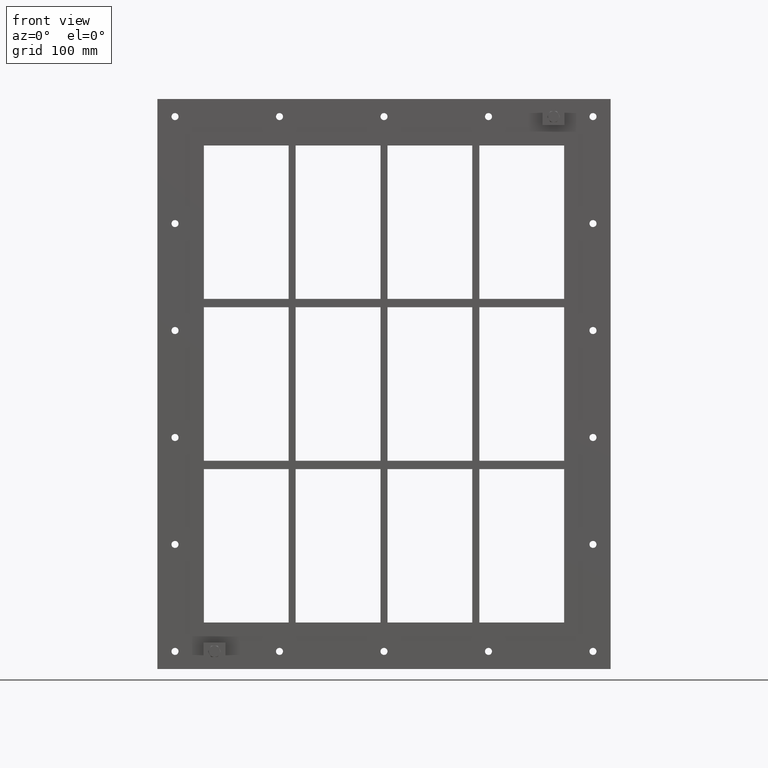
[diagram: clean part render]
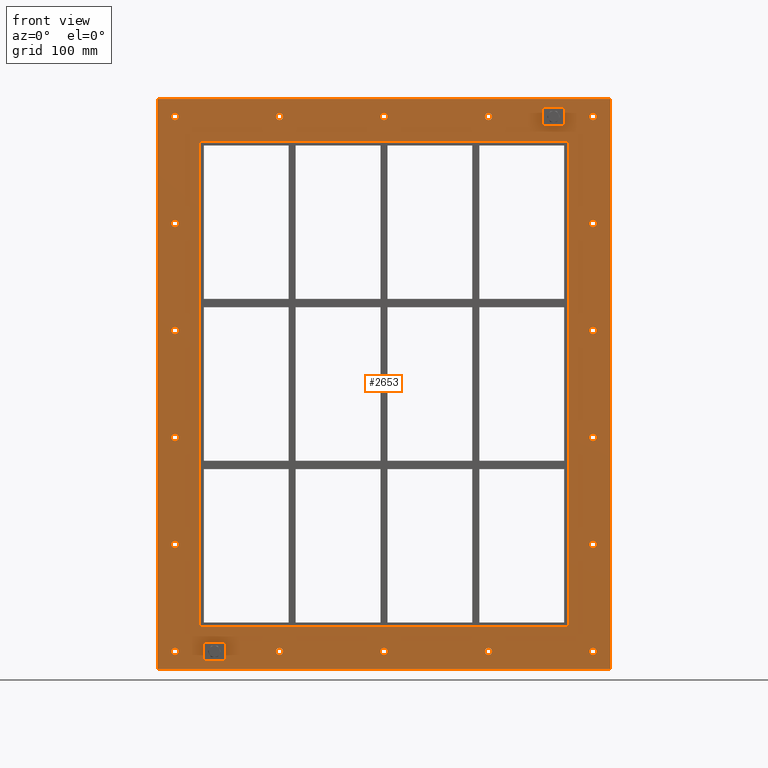
[diagram: same view with one face highlighted and labeled with its STEP entity id]
A machine part, front view. The second image highlights one B-rep face of the part: STEP entity #2653.
In plain terms, the highlighted planar face has unit normal (0, 1, 0).
Its self-contained STEP definition (entity closure, byte-faithful):
#84=CARTESIAN_POINT('',(-292.00000000000023,0.0,-380.0));
#85=VERTEX_POINT('',#84);
#86=CARTESIAN_POINT('',(-297.00000000000023,0.0,-380.0));
#87=DIRECTION('',(0.0,1.0,0.0));
#88=DIRECTION('',(1.0,0.0,0.0));
#89=AXIS2_PLACEMENT_3D('',#86,#87,#88);
#90=CIRCLE('',#89,5.0);
#91=EDGE_CURVE('',#85,#85,#90,.T.);
#112=CARTESIAN_POINT('',(301.99999999999983,0.0,-228.00000000000006));
#113=VERTEX_POINT('',#112);
#114=CARTESIAN_POINT('',(296.99999999999983,0.0,-228.00000000000006));
#115=DIRECTION('',(0.0,1.0,0.0));
#116=DIRECTION('',(1.0,0.0,0.0));
#117=AXIS2_PLACEMENT_3D('',#114,#115,#116);
#118=CIRCLE('',#117,5.0);
#119=EDGE_CURVE('',#113,#113,#118,.T.);
#140=CARTESIAN_POINT('',(-292.00000000000023,0.0,-228.00000000000006));
#141=VERTEX_POINT('',#140);
#142=CARTESIAN_POINT('',(-297.00000000000023,0.0,-228.00000000000006));
#143=DIRECTION('',(0.0,1.0,0.0));
#144=DIRECTION('',(1.0,0.0,0.0));
#145=AXIS2_PLACEMENT_3D('',#142,#143,#144);
#146=CIRCLE('',#145,5.0);
#147=EDGE_CURVE('',#141,#141,#146,.T.);
#168=CARTESIAN_POINT('',(301.99999999999983,0.0,-76.0));
#169=VERTEX_POINT('',#168);
#170=CARTESIAN_POINT('',(296.99999999999983,0.0,-76.0));
#171=DIRECTION('',(0.0,1.0,0.0));
#172=DIRECTION('',(1.0,0.0,0.0));
#173=AXIS2_PLACEMENT_3D('',#170,#171,#172);
#174=CIRCLE('',#173,5.0);
#175=EDGE_CURVE('',#169,#169,#174,.T.);
#196=CARTESIAN_POINT('',(-292.00000000000023,0.0,-76.0));
#197=VERTEX_POINT('',#196);
#198=CARTESIAN_POINT('',(-297.00000000000023,0.0,-76.0));
#199=DIRECTION('',(0.0,1.0,0.0));
#200=DIRECTION('',(1.0,0.0,0.0));
#201=AXIS2_PLACEMENT_3D('',#198,#199,#200);
#202=CIRCLE('',#201,5.0);
#203=EDGE_CURVE('',#197,#197,#202,.T.);
#224=CARTESIAN_POINT('',(301.99999999999983,0.0,75.999999999999957));
#225=VERTEX_POINT('',#224);
#226=CARTESIAN_POINT('',(296.99999999999983,0.0,75.999999999999957));
#227=DIRECTION('',(0.0,1.0,0.0));
#228=DIRECTION('',(1.0,0.0,0.0));
#229=AXIS2_PLACEMENT_3D('',#226,#227,#228);
#230=CIRCLE('',#229,5.0);
#231=EDGE_CURVE('',#225,#225,#230,.T.);
#252=CARTESIAN_POINT('',(-292.00000000000023,0.0,75.999999999999957));
#253=VERTEX_POINT('',#252);
#254=CARTESIAN_POINT('',(-297.00000000000023,0.0,75.999999999999957));
#255=DIRECTION('',(0.0,1.0,0.0));
#256=DIRECTION('',(1.0,0.0,0.0));
#257=AXIS2_PLACEMENT_3D('',#254,#255,#256);
#258=CIRCLE('',#257,5.0);
#259=EDGE_CURVE('',#253,#253,#258,.T.);
#280=CARTESIAN_POINT('',(301.99999999999983,0.0,227.99999999999997));
#281=VERTEX_POINT('',#280);
#282=CARTESIAN_POINT('',(296.99999999999983,0.0,227.99999999999997));
#283=DIRECTION('',(0.0,1.0,0.0));
#284=DIRECTION('',(1.0,0.0,0.0));
#285=AXIS2_PLACEMENT_3D('',#282,#283,#284);
#286=CIRCLE('',#285,5.0);
#287=EDGE_CURVE('',#281,#281,#286,.T.);
#308=CARTESIAN_POINT('',(-292.00000000000023,0.0,227.99999999999997));
#309=VERTEX_POINT('',#308);
#310=CARTESIAN_POINT('',(-297.00000000000023,0.0,227.99999999999997));
#311=DIRECTION('',(0.0,1.0,0.0));
#312=DIRECTION('',(1.0,0.0,0.0));
#313=AXIS2_PLACEMENT_3D('',#310,#311,#312);
#314=CIRCLE('',#313,5.0);
#315=EDGE_CURVE('',#309,#309,#314,.T.);
#336=CARTESIAN_POINT('',(-143.5000000000002,0.0,380.0));
#337=VERTEX_POINT('',#336);
#338=CARTESIAN_POINT('',(-148.5000000000002,0.0,380.0));
#339=DIRECTION('',(0.0,1.0,0.0));
#340=DIRECTION('',(1.0,0.0,0.0));
#341=AXIS2_PLACEMENT_3D('',#338,#339,#340);
#342=CIRCLE('',#341,5.0);
#343=EDGE_CURVE('',#337,#337,#342,.T.);
#364=CARTESIAN_POINT('',(-143.50000000000017,0.0,-380.0));
#365=VERTEX_POINT('',#364);
#366=CARTESIAN_POINT('',(-148.50000000000017,0.0,-380.0));
#367=DIRECTION('',(0.0,1.0,0.0));
#368=DIRECTION('',(1.0,0.0,0.0));
#369=AXIS2_PLACEMENT_3D('',#366,#367,#368);
#370=CIRCLE('',#369,5.0);
#371=EDGE_CURVE('',#365,#365,#370,.T.);
#392=CARTESIAN_POINT('',(4.999999999999822,0.0,380.0));
#393=VERTEX_POINT('',#392);
#394=CARTESIAN_POINT('',(-1.776357E-013,0.0,380.0));
#395=DIRECTION('',(0.0,1.0,0.0));
#396=DIRECTION('',(1.0,0.0,0.0));
#397=AXIS2_PLACEMENT_3D('',#394,#395,#396);
#398=CIRCLE('',#397,5.0);
#399=EDGE_CURVE('',#393,#393,#398,.T.);
#420=CARTESIAN_POINT('',(4.999999999999858,0.0,-380.0));
#421=VERTEX_POINT('',#420);
#422=CARTESIAN_POINT('',(-1.421085E-013,0.0,-380.0));
#423=DIRECTION('',(0.0,1.0,0.0));
#424=DIRECTION('',(1.0,0.0,0.0));
#425=AXIS2_PLACEMENT_3D('',#422,#423,#424);
#426=CIRCLE('',#425,5.0);
#427=EDGE_CURVE('',#421,#421,#426,.T.);
#448=CARTESIAN_POINT('',(153.49999999999983,0.0,380.0));
#449=VERTEX_POINT('',#448);
#450=CARTESIAN_POINT('',(148.49999999999983,0.0,380.0));
#451=DIRECTION('',(0.0,1.0,0.0));
#452=DIRECTION('',(1.0,0.0,0.0));
#453=AXIS2_PLACEMENT_3D('',#450,#451,#452);
#454=CIRCLE('',#453,5.0);
#455=EDGE_CURVE('',#449,#449,#454,.T.);
#476=CARTESIAN_POINT('',(153.49999999999989,0.0,-380.0));
#477=VERTEX_POINT('',#476);
#478=CARTESIAN_POINT('',(148.49999999999989,0.0,-380.0));
#479=DIRECTION('',(0.0,1.0,0.0));
#480=DIRECTION('',(1.0,0.0,0.0));
#481=AXIS2_PLACEMENT_3D('',#478,#479,#480);
#482=CIRCLE('',#481,5.0);
#483=EDGE_CURVE('',#477,#477,#482,.T.);
#504=CARTESIAN_POINT('',(301.99999999999989,0.0,-380.0));
#505=VERTEX_POINT('',#504);
#506=CARTESIAN_POINT('',(296.99999999999989,0.0,-380.0));
#507=DIRECTION('',(0.0,1.0,0.0));
#508=DIRECTION('',(1.0,0.0,0.0));
#509=AXIS2_PLACEMENT_3D('',#506,#507,#508);
#510=CIRCLE('',#509,5.0);
#511=EDGE_CURVE('',#505,#505,#510,.T.);
#532=CARTESIAN_POINT('',(-292.00000000000023,0.0,380.0));
#533=VERTEX_POINT('',#532);
#534=CARTESIAN_POINT('',(-297.00000000000023,0.0,380.0));
#535=DIRECTION('',(0.0,1.0,0.0));
#536=DIRECTION('',(1.0,0.0,0.0));
#537=AXIS2_PLACEMENT_3D('',#534,#535,#536);
#538=CIRCLE('',#537,5.0);
#539=EDGE_CURVE('',#533,#533,#538,.T.);
#560=CARTESIAN_POINT('',(301.99999999999983,0.0,380.0));
#561=VERTEX_POINT('',#560);
#562=CARTESIAN_POINT('',(296.99999999999983,0.0,380.0));
#563=DIRECTION('',(0.0,1.0,0.0));
#564=DIRECTION('',(1.0,0.0,0.0));
#565=AXIS2_PLACEMENT_3D('',#562,#563,#564);
#566=CIRCLE('',#565,5.0);
#567=EDGE_CURVE('',#561,#561,#566,.T.);
#2490=CARTESIAN_POINT('',(-2.345671E-014,0.0,3.518506E-014));
#2491=DIRECTION('',(0.0,1.0,0.0));
#2492=DIRECTION('',(0.0,0.0,1.0));
#2493=AXIS2_PLACEMENT_3D('',#2490,#2491,#2492);
#2494=PLANE('',#2493);
#2495=CARTESIAN_POINT('',(-322.0,0.0,405.00000000000006));
#2496=VERTEX_POINT('',#2495);
#2497=CARTESIAN_POINT('',(321.99999999999994,0.0,405.00000000000006));
#2498=VERTEX_POINT('',#2497);
#2499=CARTESIAN_POINT('',(-322.0,0.0,405.00000000000006));
#2500=DIRECTION('',(1.0,0.0,0.0));
#2501=VECTOR('',#2500,644.0);
#2502=LINE('',#2499,#2501);
#2503=EDGE_CURVE('',#2496,#2498,#2502,.T.);
#2504=ORIENTED_EDGE('',*,*,#2503,.F.);
#2505=CARTESIAN_POINT('',(-322.0,0.0,-405.0));
#2506=VERTEX_POINT('',#2505);
#2507=CARTESIAN_POINT('',(-322.0,0.0,-405.0));
#2508=DIRECTION('',(0.0,0.0,1.0));
#2509=VECTOR('',#2508,810.0);
#2510=LINE('',#2507,#2509);
#2511=EDGE_CURVE('',#2506,#2496,#2510,.T.);
#2512=ORIENTED_EDGE('',*,*,#2511,.F.);
#2513=CARTESIAN_POINT('',(321.99999999999994,0.0,-405.0));
#2514=VERTEX_POINT('',#2513);
#2515=CARTESIAN_POINT('',(321.99999999999994,0.0,-405.0));
#2516=DIRECTION('',(-1.0,0.0,0.0));
#2517=VECTOR('',#2516,644.0);
#2518=LINE('',#2515,#2517);
#2519=EDGE_CURVE('',#2514,#2506,#2518,.T.);
#2520=ORIENTED_EDGE('',*,*,#2519,.F.);
#2521=CARTESIAN_POINT('',(321.99999999999994,0.0,405.00000000000006));
#2522=DIRECTION('',(0.0,0.0,-1.0));
#2523=VECTOR('',#2522,810.0);
#2524=LINE('',#2521,#2523);
#2525=EDGE_CURVE('',#2498,#2514,#2524,.T.);
#2526=ORIENTED_EDGE('',*,*,#2525,.F.);
#2527=EDGE_LOOP('',(#2504,#2512,#2520,#2526));
#2528=FACE_OUTER_BOUND('',#2527,.T.);
#2529=ORIENTED_EDGE('',*,*,#91,.T.);
#2530=EDGE_LOOP('',(#2529));
#2531=FACE_BOUND('',#2530,.T.);
#2532=ORIENTED_EDGE('',*,*,#119,.T.);
#2533=EDGE_LOOP('',(#2532));
#2534=FACE_BOUND('',#2533,.T.);
#2535=ORIENTED_EDGE('',*,*,#147,.T.);
#2536=EDGE_LOOP('',(#2535));
#2537=FACE_BOUND('',#2536,.T.);
#2538=ORIENTED_EDGE('',*,*,#175,.T.);
#2539=EDGE_LOOP('',(#2538));
#2540=FACE_BOUND('',#2539,.T.);
#2541=ORIENTED_EDGE('',*,*,#203,.T.);
#2542=EDGE_LOOP('',(#2541));
#2543=FACE_BOUND('',#2542,.T.);
#2544=ORIENTED_EDGE('',*,*,#231,.T.);
#2545=EDGE_LOOP('',(#2544));
#2546=FACE_BOUND('',#2545,.T.);
#2547=ORIENTED_EDGE('',*,*,#259,.T.);
#2548=EDGE_LOOP('',(#2547));
#2549=FACE_BOUND('',#2548,.T.);
#2550=ORIENTED_EDGE('',*,*,#287,.T.);
#2551=EDGE_LOOP('',(#2550));
#2552=FACE_BOUND('',#2551,.T.);
#2553=ORIENTED_EDGE('',*,*,#315,.T.);
#2554=EDGE_LOOP('',(#2553));
#2555=FACE_BOUND('',#2554,.T.);
#2556=ORIENTED_EDGE('',*,*,#343,.T.);
#2557=EDGE_LOOP('',(#2556));
#2558=FACE_BOUND('',#2557,.T.);
#2559=ORIENTED_EDGE('',*,*,#371,.T.);
#2560=EDGE_LOOP('',(#2559));
#2561=FACE_BOUND('',#2560,.T.);
#2562=ORIENTED_EDGE('',*,*,#399,.T.);
#2563=EDGE_LOOP('',(#2562));
#2564=FACE_BOUND('',#2563,.T.);
#2565=ORIENTED_EDGE('',*,*,#427,.T.);
#2566=EDGE_LOOP('',(#2565));
#2567=FACE_BOUND('',#2566,.T.);
#2568=ORIENTED_EDGE('',*,*,#455,.T.);
#2569=EDGE_LOOP('',(#2568));
#2570=FACE_BOUND('',#2569,.T.);
#2571=ORIENTED_EDGE('',*,*,#483,.T.);
#2572=EDGE_LOOP('',(#2571));
#2573=FACE_BOUND('',#2572,.T.);
#2574=ORIENTED_EDGE('',*,*,#511,.T.);
#2575=EDGE_LOOP('',(#2574));
#2576=FACE_BOUND('',#2575,.T.);
#2577=ORIENTED_EDGE('',*,*,#539,.T.);
#2578=EDGE_LOOP('',(#2577));
#2579=FACE_BOUND('',#2578,.T.);
#2580=ORIENTED_EDGE('',*,*,#567,.T.);
#2581=EDGE_LOOP('',(#2580));
#2582=FACE_BOUND('',#2581,.T.);
#2583=CARTESIAN_POINT('',(-260.0,0.0,345.00000000000006));
#2584=VERTEX_POINT('',#2583);
#2585=CARTESIAN_POINT('',(-262.0,0.0,343.00000000000006));
#2586=VERTEX_POINT('',#2585);
#2587=CARTESIAN_POINT('',(-260.0,0.0,343.00000000000006));
#2588=DIRECTION('',(0.0,-1.0,0.0));
#2589=DIRECTION('',(-0.707106781186548,0.0,0.707106781186548));
#2590=AXIS2_PLACEMENT_3D('',#2587,#2588,#2589);
#2591=CIRCLE('',#2590,2.0);
#2592=EDGE_CURVE('',#2584,#2586,#2591,.T.);
#2593=ORIENTED_EDGE('',*,*,#2592,.F.);
#2594=CARTESIAN_POINT('',(260.0,0.0,345.00000000000006));
#2595=VERTEX_POINT('',#2594);
#2596=CARTESIAN_POINT('',(260.0,0.0,345.00000000000006));
#2597=DIRECTION('',(-1.0,0.0,0.0));
#2598=VECTOR('',#2597,520.0);
#2599=LINE('',#2596,#2598);
#2600=EDGE_CURVE('',#2595,#2584,#2599,.T.);
#2601=ORIENTED_EDGE('',*,*,#2600,.F.);
#2602=CARTESIAN_POINT('',(262.0,0.0,343.00000000000006));
#2603=VERTEX_POINT('',#2602);
#2604=CARTESIAN_POINT('',(260.0,0.0,343.00000000000006));
#2605=DIRECTION('',(0.0,-1.0,0.0));
#2606=DIRECTION('',(0.707106781186548,0.0,0.707106781186548));
#2607=AXIS2_PLACEMENT_3D('',#2604,#2605,#2606);
#2608=CIRCLE('',#2607,2.0);
#2609=EDGE_CURVE('',#2603,#2595,#2608,.T.);
#2610=ORIENTED_EDGE('',*,*,#2609,.F.);
#2611=CARTESIAN_POINT('',(262.0,0.0,-343.00000000000006));
#2612=VERTEX_POINT('',#2611);
#2613=CARTESIAN_POINT('',(262.0,0.0,-343.00000000000011));
#2614=DIRECTION('',(0.0,0.0,1.0));
#2615=VECTOR('',#2614,686.00000000000011);
#2616=LINE('',#2613,#2615);
#2617=EDGE_CURVE('',#2612,#2603,#2616,.T.);
#2618=ORIENTED_EDGE('',*,*,#2617,.F.);
#2619=CARTESIAN_POINT('',(260.0,0.0,-345.00000000000006));
#2620=VERTEX_POINT('',#2619);
#2621=CARTESIAN_POINT('',(260.0,0.0,-343.00000000000006));
#2622=DIRECTION('',(0.0,-1.0,0.0));
#2623=DIRECTION('',(0.707106781186548,0.0,-0.707106781186548));
#2624=AXIS2_PLACEMENT_3D('',#2621,#2622,#2623);
#2625=CIRCLE('',#2624,2.0);
#2626=EDGE_CURVE('',#2620,#2612,#2625,.T.);
#2627=ORIENTED_EDGE('',*,*,#2626,.F.);
#2628=CARTESIAN_POINT('',(-260.0,0.0,-345.00000000000006));
#2629=VERTEX_POINT('',#2628);
#2630=CARTESIAN_POINT('',(-260.0,0.0,-345.00000000000006));
#2631=DIRECTION('',(1.0,0.0,0.0));
#2632=VECTOR('',#2631,520.0);
#2633=LINE('',#2630,#2632);
#2634=EDGE_CURVE('',#2629,#2620,#2633,.T.);
#2635=ORIENTED_EDGE('',*,*,#2634,.F.);
#2636=CARTESIAN_POINT('',(-262.0,0.0,-343.00000000000006));
#2637=VERTEX_POINT('',#2636);
#2638=CARTESIAN_POINT('',(-260.0,0.0,-343.00000000000006));
#2639=DIRECTION('',(0.0,-1.0,0.0));
#2640=DIRECTION('',(-0.707106781186548,0.0,-0.707106781186548));
#2641=AXIS2_PLACEMENT_3D('',#2638,#2639,#2640);
#2642=CIRCLE('',#2641,2.0);
#2643=EDGE_CURVE('',#2637,#2629,#2642,.T.);
#2644=ORIENTED_EDGE('',*,*,#2643,.F.);
#2645=CARTESIAN_POINT('',(-262.0,0.0,343.00000000000011));
#2646=DIRECTION('',(0.0,0.0,-1.0));
#2647=VECTOR('',#2646,686.00000000000011);
#2648=LINE('',#2645,#2647);
#2649=EDGE_CURVE('',#2586,#2637,#2648,.T.);
#2650=ORIENTED_EDGE('',*,*,#2649,.F.);
#2651=EDGE_LOOP('',(#2593,#2601,#2610,#2618,#2627,#2635,#2644,#2650));
#2652=FACE_BOUND('',#2651,.T.);
#2653=ADVANCED_FACE('',(#2528,#2531,#2534,#2537,#2540,#2543,#2546,#2549,#2552,#2555,#2558,#2561,#2564,#2567,#2570,#2573,#2576,#2579,#2582,#2652),#2494,.F.);